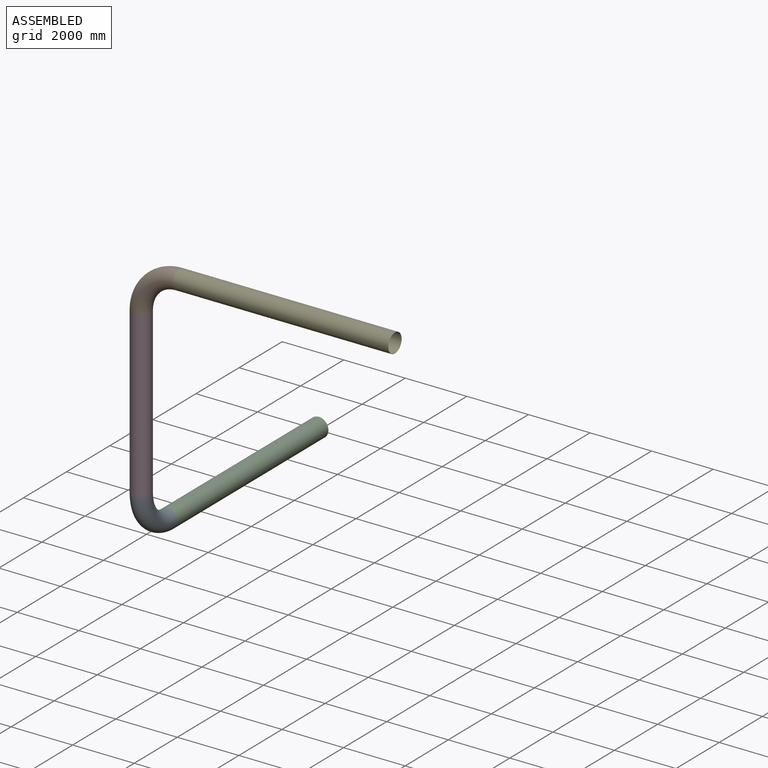
[diagram: assembled view]
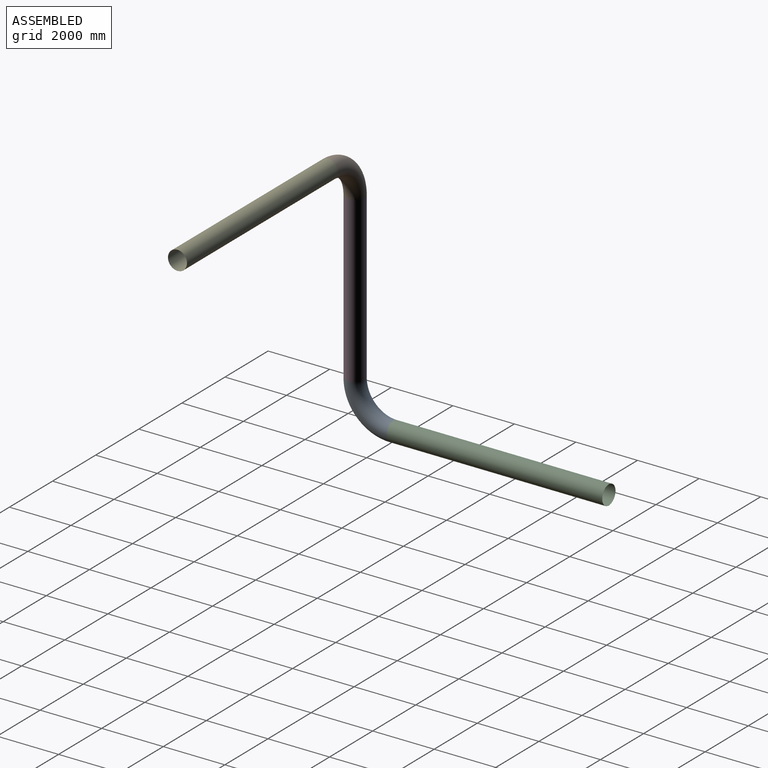
[diagram: assembled view, second angle]
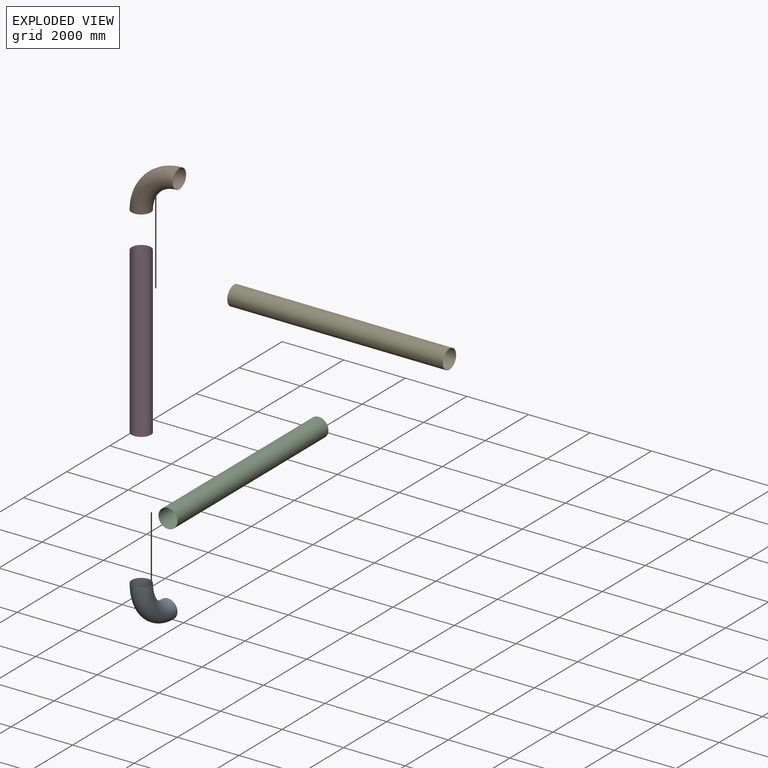
[diagram: exploded view]
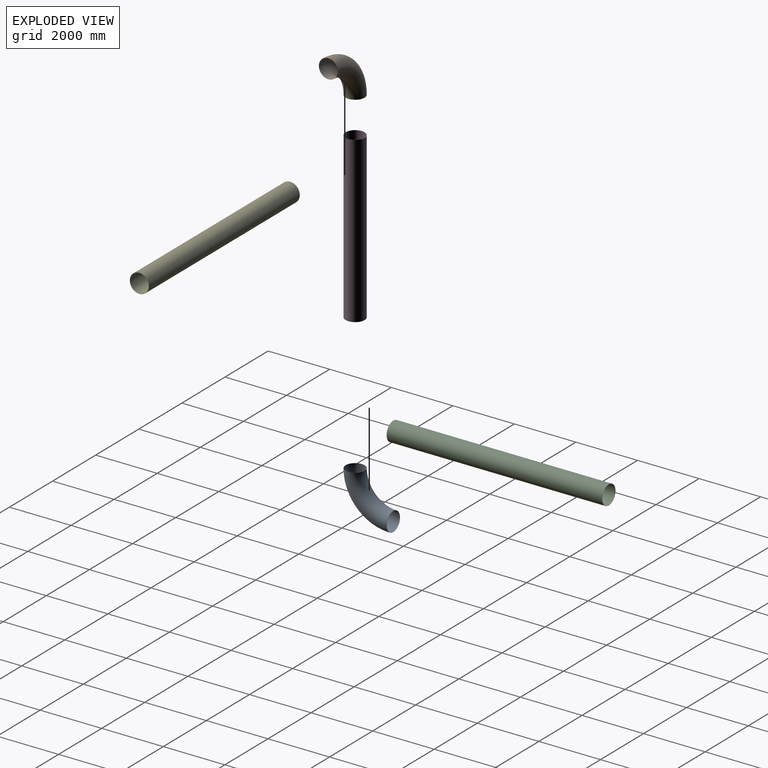
[diagram: exploded view, second angle]
ASSEMBLY  parts=5 mates=4
PART A: 4 faces, bbox 620x1677.7x1677.7 mm
  f0: torus R=1240mm, axis (-1,0,0), area 3757161mm2, adj f2,f3
  f1: torus R=1240mm, axis (-1,0,0), area 3793875.9mm2, adj f2,f3
  f2: plane 620x620mm, normal (0,1,0), area 5815.1mm2, adj f0,f1
  f3: plane 620x620mm, normal (0,0,1), area 5815.1mm2, adj f0,f1
PART B: same geometry as A
PART C: 4 faces, bbox 620x620x7000 mm
  f0: cylinder r=307mm len=7000mm, axis (0,0,-1), area 13502565.2mm2, adj f2,f3
  f1: cylinder r=310mm len=7000mm, axis (0,0,-1), area 13634512.1mm2, adj f2,f3
  f2: plane 620x620mm, normal (0,0,1), area 5815.1mm2, adj f0,f1
  f3: plane 620x620mm, normal (0,0,-1), area 5815.1mm2, adj f0,f1
PART D: 4 faces, bbox 620x620x5350 mm
  f0: cylinder r=310mm len=5350mm, axis (0,0,-1), area 10420662.8mm2, adj f2,f3
  f1: cylinder r=307mm len=5350mm, axis (0,0,-1), area 10319817.7mm2, adj f2,f3
  f2: plane 620x620mm, normal (0,0,1), area 5815.1mm2, adj f0,f1
  f3: plane 620x620mm, normal (0,0,-1), area 5815.1mm2, adj f0,f1
PART E: 4 faces, bbox 620x620x7000 mm
  f0: cylinder r=307mm len=7000mm, axis (0,0,-1), area 13502565.2mm2, adj f2,f3
  f1: cylinder r=310mm len=7000mm, axis (0,0,-1), area 13634512.1mm2, adj f2,f3
  f2: plane 620x620mm, normal (0,0,1), area 5815.1mm2, adj f0,f1
  f3: plane 620x620mm, normal (0,0,-1), area 5815.1mm2, adj f0,f1
PLACE A t=(-183.13,-1697.34,9494.15)mm
PLACE B rot(axis=(-0.58,0.58,-0.58),120deg) t=(1056.87,-1697.34,16084.15)mm
PLACE C rot(axis=(0.58,0.58,-0.58),120deg) t=(-183.13,6542.66,3997.48)mm
PLACE D rot(axis=(0,1,0),180deg) t=(-2558.19,-1768.19,14844.15)mm
PLACE E rot(axis=(0.58,-0.58,-0.58),120deg) t=(8056.87,-4976.07,16084.15)mm
MATE fastened B.f3 <-> E.f0  axis (1,0,0) through (1056.87,-1697.34,16084.15)mm
MATE fastened A.f2 <-> C.f0  axis (0,1,0) through (-183.13,-457.34,8254.15)mm
MATE fastened D.f0 <-> B.f2  axis (0,0,1) through (-183.13,-1697.34,14844.15)mm
MATE fastened D.f0 <-> A.f3  axis (0,0,-1) through (-183.13,-1697.34,9494.15)mm
